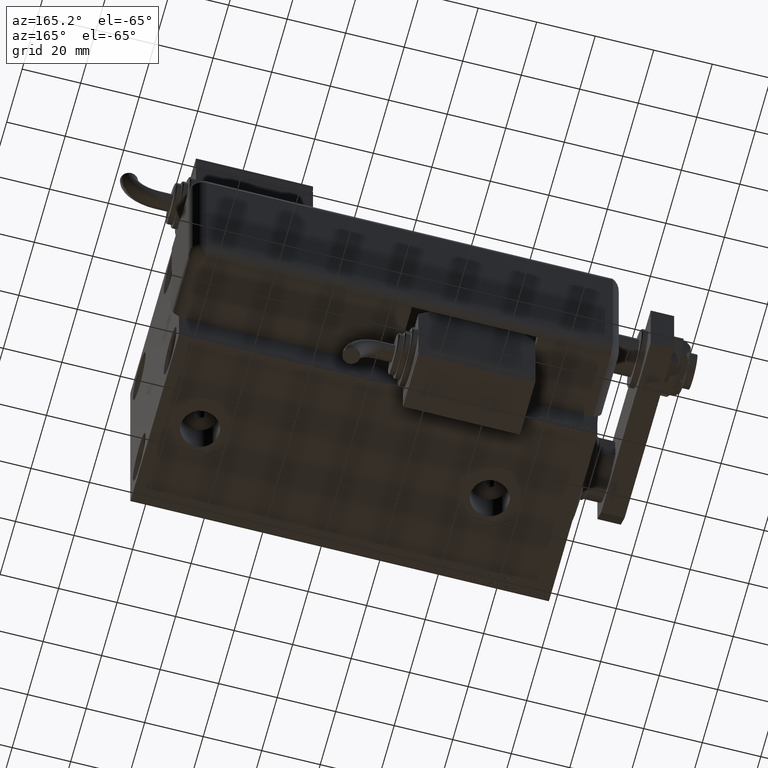
[diagram: clean part render]
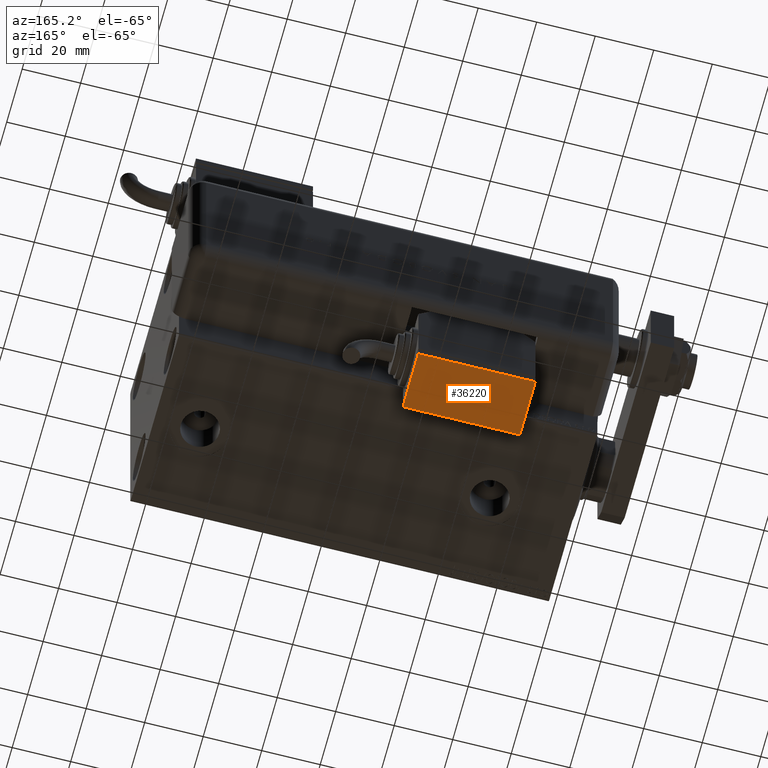
[diagram: same view with one face highlighted and labeled with its STEP entity id]
A machine part, auxiliary view. The second image highlights one B-rep face of the part: STEP entity #36220.
In plain terms, the highlighted planar face has unit normal (0, 0, 1).
Its self-contained STEP definition (entity closure, byte-faithful):
#4759 = EDGE_CURVE ( 'NONE', #40001, #35502, #58099, .T. ) ;
#5990 = CARTESIAN_POINT ( 'NONE',  ( 20.00000000000005329, -17.49999999999996092, -9.999999999999998224 ) ) ;
#6131 = CARTESIAN_POINT ( 'NONE',  ( -19.99999999999994316, -17.49999999999996092, -9.999999999999998224 ) ) ;
#7776 = CARTESIAN_POINT ( 'NONE',  ( -19.99999999999994316, -17.49999999999996092, 10.00000000000000000 ) ) ;
#8971 = DIRECTION ( 'NONE',  ( -0.000000000000000000, -0.000000000000000000, -1.000000000000000000 ) ) ;
#9682 = LINE ( 'NONE', #24157, #17523 ) ;
#10245 = VECTOR ( 'NONE', #13094, 1000.000000000000000 ) ;
#12242 = CARTESIAN_POINT ( 'NONE',  ( 0.000000000000000000, -17.49999999999996092, 0.000000000000000000 ) ) ;
#12768 = EDGE_LOOP ( 'NONE', ( #46350, #25658, #24965, #51825 ) ) ;
#13094 = DIRECTION ( 'NONE',  ( -1.000000000000000000, -0.000000000000000000, -0.000000000000000000 ) ) ;
#16019 = VERTEX_POINT ( 'NONE', #6131 ) ;
#16574 = DIRECTION ( 'NONE',  ( 0.000000000000000000, 1.000000000000000000, 0.000000000000000000 ) ) ;
#17523 = VECTOR ( 'NONE', #33427, 1000.000000000000000 ) ;
#20775 = DIRECTION ( 'NONE',  ( 0.000000000000000000, 0.000000000000000000, 1.000000000000000000 ) ) ;
#21535 = AXIS2_PLACEMENT_3D ( 'NONE', #12242, #16574, #34776 ) ;
#22351 = CARTESIAN_POINT ( 'NONE',  ( -19.99999999999994316, -17.49999999999996092, 10.00000000000000000 ) ) ;
#22949 = LINE ( 'NONE', #22351, #10245 ) ;
#23147 = CARTESIAN_POINT ( 'NONE',  ( 20.00000000000005329, -17.49999999999996092, 10.00000000000000000 ) ) ;
#24157 = CARTESIAN_POINT ( 'NONE',  ( -19.99999999999994316, -17.49999999999996092, -9.999999999999998224 ) ) ;
#24965 = ORIENTED_EDGE ( 'NONE', *, *, #32529, .T. ) ;
#25658 = ORIENTED_EDGE ( 'NONE', *, *, #53099, .T. ) ;
#31059 = FACE_OUTER_BOUND ( 'NONE', #12768, .T. ) ;
#32529 = EDGE_CURVE ( 'NONE', #37910, #16019, #56458, .T. ) ;
#33427 = DIRECTION ( 'NONE',  ( 1.000000000000000000, 0.000000000000000000, 0.000000000000000000 ) ) ;
#34776 = DIRECTION ( 'NONE',  ( 0.000000000000000000, -0.000000000000000000, 1.000000000000000000 ) ) ;
#35502 = VERTEX_POINT ( 'NONE', #23147 ) ;
#36220 = ADVANCED_FACE ( 'NONE', ( #31059 ), #40311, .F. ) ;
#37170 = VECTOR ( 'NONE', #8971, 1000.000000000000000 ) ;
#37732 = EDGE_CURVE ( 'NONE', #16019, #40001, #9682, .T. ) ;
#37910 = VERTEX_POINT ( 'NONE', #7776 ) ;
#40001 = VERTEX_POINT ( 'NONE', #49167 ) ;
#40311 = PLANE ( 'NONE',  #21535 ) ;
#46350 = ORIENTED_EDGE ( 'NONE', *, *, #4759, .T. ) ;
#49167 = CARTESIAN_POINT ( 'NONE',  ( 20.00000000000005329, -17.49999999999996092, -9.999999999999998224 ) ) ;
#51825 = ORIENTED_EDGE ( 'NONE', *, *, #37732, .T. ) ;
#51827 = CARTESIAN_POINT ( 'NONE',  ( -19.99999999999994316, -17.49999999999996092, -9.999999999999998224 ) ) ;
#53099 = EDGE_CURVE ( 'NONE', #35502, #37910, #22949, .T. ) ;
#56458 = LINE ( 'NONE', #51827, #37170 ) ;
#58099 = LINE ( 'NONE', #5990, #59188 ) ;
#59188 = VECTOR ( 'NONE', #20775, 1000.000000000000000 ) ;